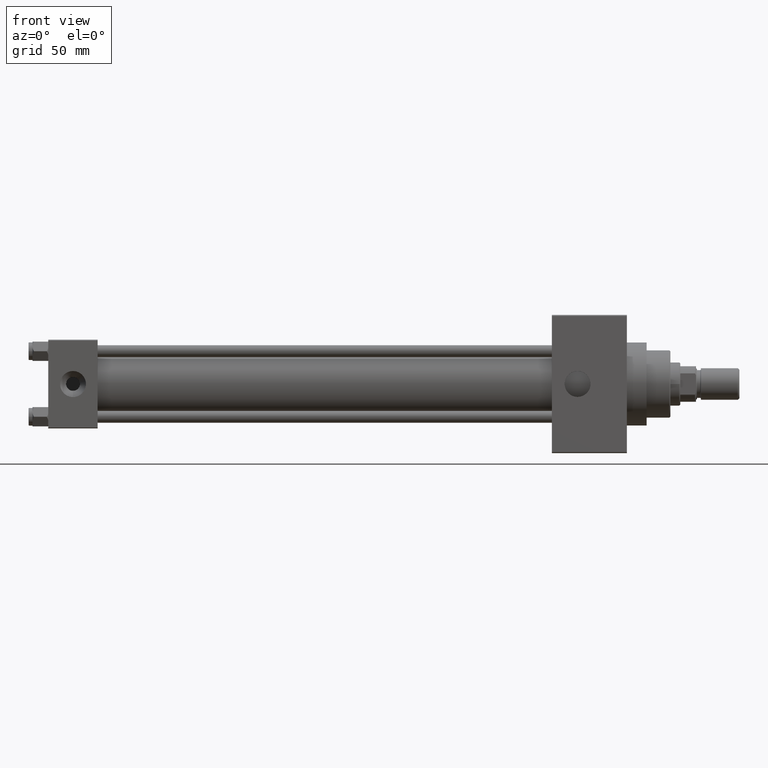
[diagram: clean part render]
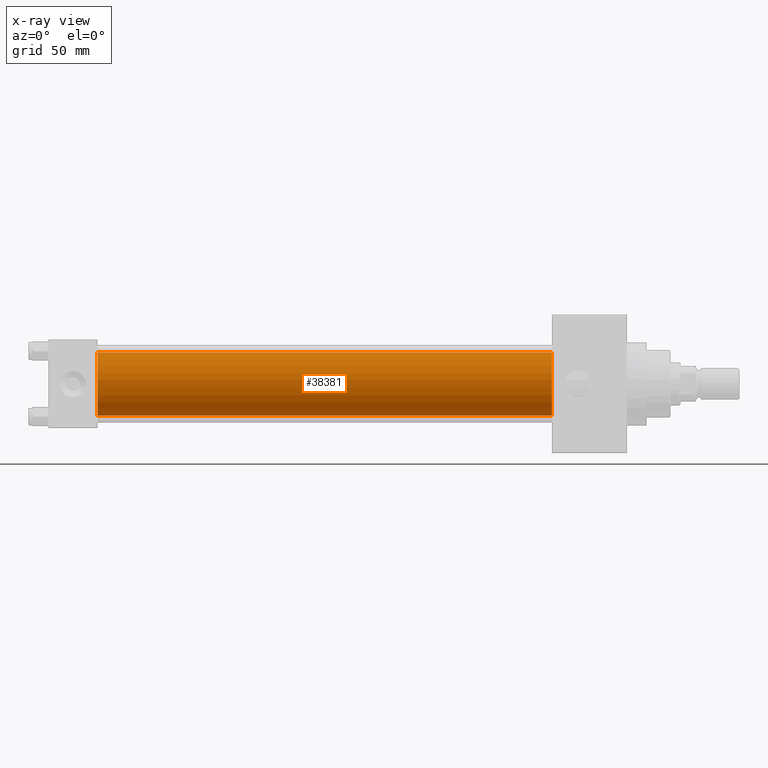
[diagram: x-ray — body ghosted, one internal face saturated and labeled with its STEP entity id]
A machine part, front view, then the same camera in x-ray: the body is ghosted and one INTERNAL B-rep face — a face not visible from any outside direction — is saturated and labeled: STEP entity #38381.
In plain terms, the highlighted cylindrical surface (edge-blend (fillet) strip) has radius 16 mm, axis along (-1, -0, -0).
Its self-contained STEP definition (entity closure, byte-faithful):
#736 = EDGE_CURVE ( 'NONE', #17424, #44486, #30543, .T. ) ;
#4230 = DIRECTION ( 'NONE',  ( -1.000000000000000000, -0.000000000000000000, -0.000000000000000000 ) ) ;
#7516 = AXIS2_PLACEMENT_3D ( 'NONE', #27060, #42852, #38588 ) ;
#7720 = CARTESIAN_POINT ( 'NONE',  ( 25.00000000000000000, -6.426503353294456087E-16, -16.00000000000000000 ) ) ;
#8182 = CYLINDRICAL_SURFACE ( 'NONE', #32841, 16.00000000000000000 ) ;
#8228 = VECTOR ( 'NONE', #4230, 1000.000000000000000 ) ;
#8426 = CARTESIAN_POINT ( 'NONE',  ( 25.00000000000000000, -2.602085213965210642E-15, 16.00000000000000000 ) ) ;
#13573 = EDGE_CURVE ( 'NONE', #24610, #31637, #21504, .T. ) ;
#13605 = CARTESIAN_POINT ( 'NONE',  ( 25.00000000000000000, -2.602085213965210642E-15, 0.000000000000000000 ) ) ;
#15384 = EDGE_CURVE ( 'NONE', #24610, #17424, #49133, .T. ) ;
#15972 = FACE_OUTER_BOUND ( 'NONE', #20757, .T. ) ;
#17424 = VERTEX_POINT ( 'NONE', #27800 ) ;
#20757 = EDGE_LOOP ( 'NONE', ( #34505, #35691, #26934, #37672 ) ) ;
#21504 = LINE ( 'NONE', #25246, #32395 ) ;
#23922 = EDGE_CURVE ( 'NONE', #31637, #44486, #36645, .T. ) ;
#24610 = VERTEX_POINT ( 'NONE', #47179 ) ;
#25246 = CARTESIAN_POINT ( 'NONE',  ( 255.0000000000000000, -2.602085213965210642E-15, 16.00000000000000000 ) ) ;
#26934 = ORIENTED_EDGE ( 'NONE', *, *, #23922, .F. ) ;
#27060 = CARTESIAN_POINT ( 'NONE',  ( 255.0000000000000000, -2.602085213965210642E-15, 0.000000000000000000 ) ) ;
#27800 = CARTESIAN_POINT ( 'NONE',  ( 255.0000000000000000, -6.426503353294456087E-16, -16.00000000000000000 ) ) ;
#30543 = LINE ( 'NONE', #45828, #8228 ) ;
#31637 = VERTEX_POINT ( 'NONE', #8426 ) ;
#31887 = DIRECTION ( 'NONE',  ( 1.000000000000000000, 0.000000000000000000, 0.000000000000000000 ) ) ;
#32261 = DIRECTION ( 'NONE',  ( -1.000000000000000000, -0.000000000000000000, -0.000000000000000000 ) ) ;
#32395 = VECTOR ( 'NONE', #32261, 1000.000000000000000 ) ;
#32841 = AXIS2_PLACEMENT_3D ( 'NONE', #39502, #43023, #35000 ) ;
#34505 = ORIENTED_EDGE ( 'NONE', *, *, #15384, .T. ) ;
#35000 = DIRECTION ( 'NONE',  ( 0.000000000000000000, 0.000000000000000000, 1.000000000000000000 ) ) ;
#35691 = ORIENTED_EDGE ( 'NONE', *, *, #736, .T. ) ;
#36645 = CIRCLE ( 'NONE', #47012, 16.00000000000000000 ) ;
#37672 = ORIENTED_EDGE ( 'NONE', *, *, #13573, .F. ) ;
#38381 = ADVANCED_FACE ( 'NONE', ( #15972 ), #8182, .F. ) ;
#38588 = DIRECTION ( 'NONE',  ( 0.000000000000000000, 0.000000000000000000, -1.000000000000000000 ) ) ;
#39502 = CARTESIAN_POINT ( 'NONE',  ( 255.0000000000000000, -2.602085213965210642E-15, 0.000000000000000000 ) ) ;
#42852 = DIRECTION ( 'NONE',  ( 1.000000000000000000, 0.000000000000000000, 0.000000000000000000 ) ) ;
#43023 = DIRECTION ( 'NONE',  ( -1.000000000000000000, -0.000000000000000000, -0.000000000000000000 ) ) ;
#44486 = VERTEX_POINT ( 'NONE', #7720 ) ;
#45828 = CARTESIAN_POINT ( 'NONE',  ( 255.0000000000000000, -6.426503353294456087E-16, -16.00000000000000000 ) ) ;
#47012 = AXIS2_PLACEMENT_3D ( 'NONE', #13605, #31887, #47168 ) ;
#47168 = DIRECTION ( 'NONE',  ( 0.000000000000000000, 0.000000000000000000, -1.000000000000000000 ) ) ;
#47179 = CARTESIAN_POINT ( 'NONE',  ( 255.0000000000000000, -2.602085213965210642E-15, 16.00000000000000000 ) ) ;
#49133 = CIRCLE ( 'NONE', #7516, 16.00000000000000000 ) ;